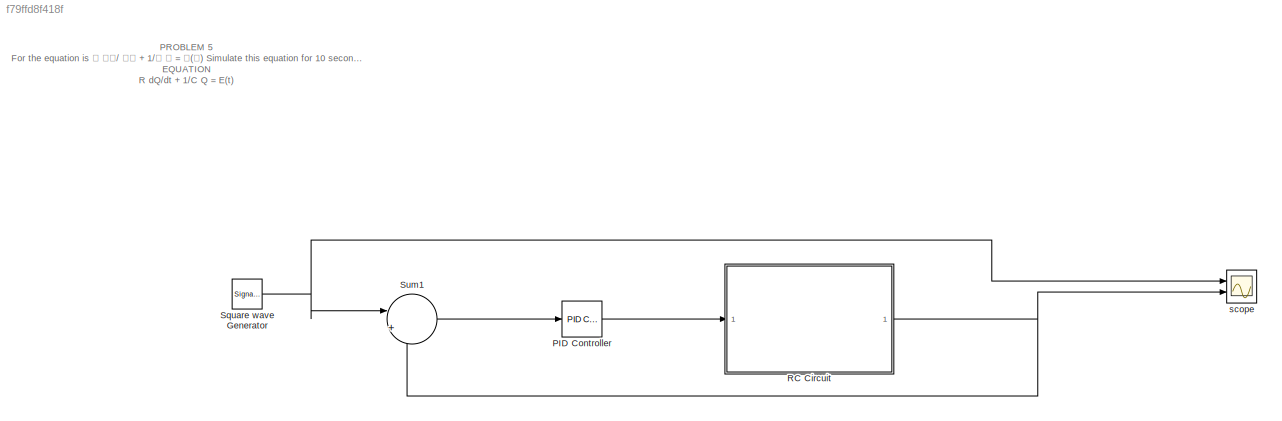
MODEL slx_f79ffd8f418f
KIND model
CONFIG AbsTol = auto
CONFIG EnableMultiTasking = off
CONFIG FixedStep = auto
CONFIG MaxStep = auto
CONFIG MinStep = auto
CONFIG PreLoadFcn = t = [1 2 3 4 5];
CONFIG RelTol = 1e-3
CONFIG SampleTimeConstraint = Unconstrained
CONFIG SolverName = VariableStepAuto
CONFIG StartTime = 0.0
CONFIG StopTime = 10.0
WORKSPACE source: mxarray member
WORKSPACE C = 1e-05
WORKSPACE R = 10
WORKSPACE t = [1 2 3 4 5]
BLOCK [Reference] PID Controller  REF=pid_lib/PID Controller
  Ports = [1, 1]
  SourceBlock = pid_lib/PID Controller
  SourceProductBaseCode = SL
  SourceType = PID 1dof
BLOCK [ModelReference] RC Circuit
  C = 10*10^-6
  ModelNameDialog = RC_Circuit
  ModelReferenceVersion = 1.11
  Ports = [1, 1]
  R = 10
  UsingDefaultArgumentValue = 0,0,0
  q_init = 0
BLOCK [SignalGenerator] Square wave Generator
  Amplitude = t
  Ports = [0, 1]
  Units = rad/sec
  WaveForm = square
BLOCK [Sum] Sum1
  Inputs = |+-
  Ports = [2, 1]
BLOCK [Scope] scope
  Floating = off
  NumInputPorts = 2
  Ports = [2]
  ScopeSpecificationString = Simulink.scopes.TimeScopeBlockCfg('CurrentConfiguration', extmgr.ConfigurationSet(extmgr.Configuration('Core','General UI',true),extmgr.Configuration('Core','Source UI',true),extmgr.Configuration('Sources','WiredSimulink',true,'DataLoggingVariableName','ScopeData1'),extmgr.Configuration('Visuals','Time Domain',true,'SerializedDisplays',{struct('MinYLimReal','-6.25','MaxYLimReal','6.25','YLabelReal...<+2183ch>
ANNOTATION (root): PROBLEM 5 For the equation is 𝑅 𝑑𝑄/ 𝑑𝑡 + 1/𝐶 𝑄 = 𝐸(𝑡) Simulate this equation for 10 seconds for 5 different initial conditions and inputs E(t). EQUATION R dQ/dt + 1/C Q = E(t)
LINE PID Controller:1 -> RC Circuit:1
NET RC Circuit:1 -> Sum1:2, scope:2
NET Square wave Generator:1 -> Sum1:1, scope:1
LINE Sum1:1 -> PID Controller:1
note: NET lines group one-source signal fan-out (src -> all destinations, sorted); 1:1 wires keep LINE
